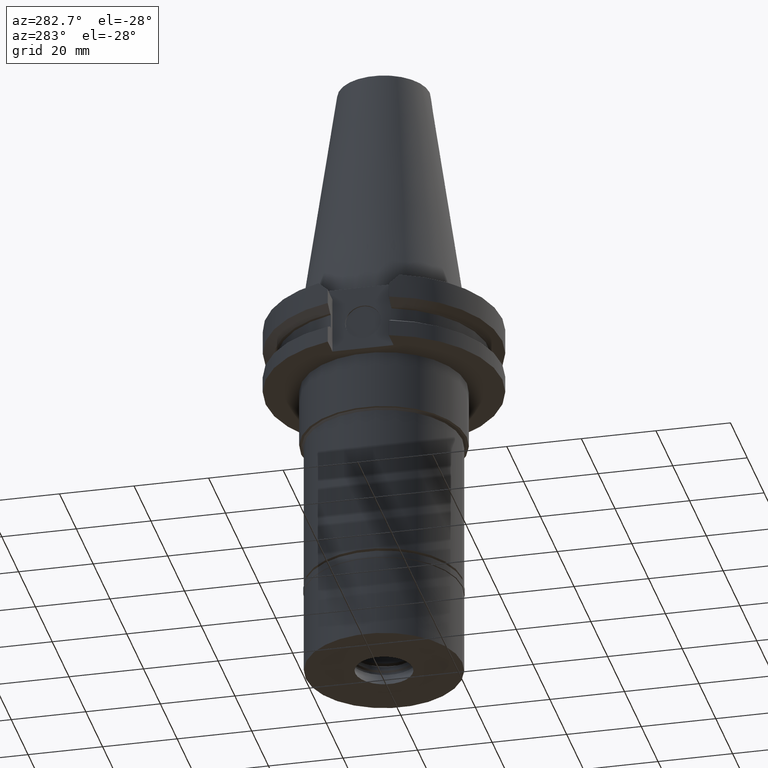
[diagram: clean part render]
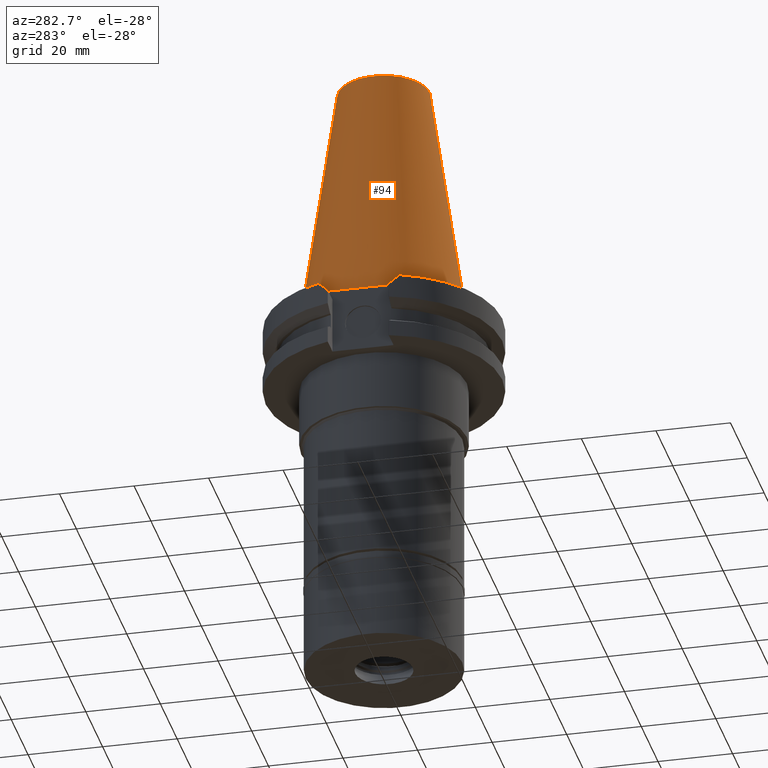
[diagram: same view with one face highlighted and labeled with its STEP entity id]
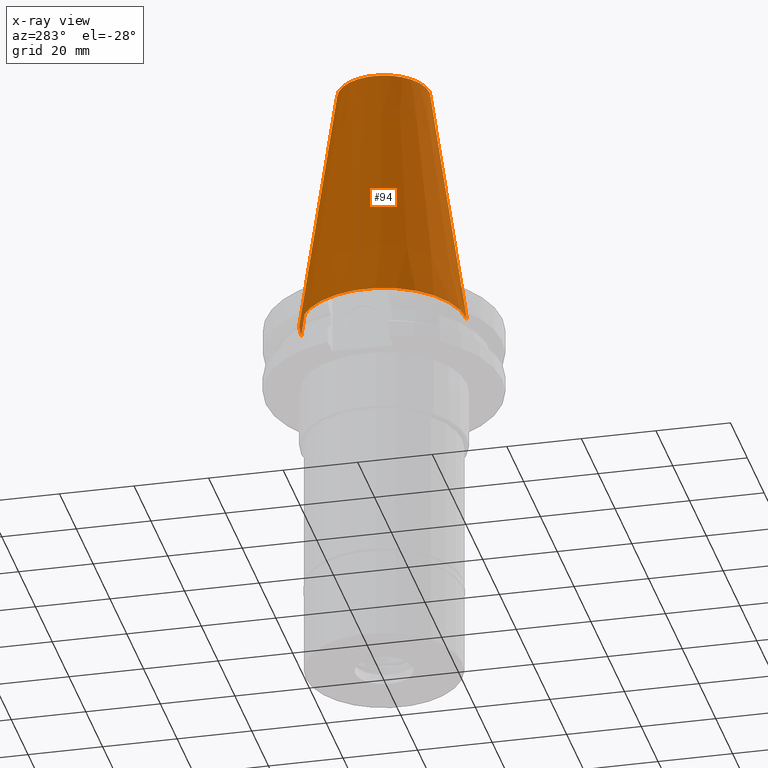
[diagram: x-ray of the same camera — body ghosted, the highlighted face saturated]
A machine part, auxiliary view. The second image highlights one B-rep face of the part: STEP entity #94.
The next image is the same camera in x-ray: the body ghosted, the highlighted face saturated — about 1% of this face is hidden behind the body in this view.
In plain terms, the highlighted conical surface has half-angle 8.297 deg.
Its self-contained STEP definition (entity closure, byte-faithful):
#94 = ADVANCED_FACE ( 'NONE', ( #613 ), #2600, .T. ) ;
#110 = ORIENTED_EDGE ( 'NONE', *, *, #686, .F. ) ;
#203 = CARTESIAN_POINT ( 'NONE',  ( 0.0000000000000000000, 22.22500000000000142, -2.131628207279999655E-13 ) ) ;
#258 = VECTOR ( 'NONE', #1866, 1000.000000000000114 ) ;
#357 = DIRECTION ( 'NONE',  ( 0.0000000000000000000, 0.0000000000000000000, -1.000000000000000000 ) ) ;
#390 = LINE ( 'NONE', #840, #258 ) ;
#486 = CARTESIAN_POINT ( 'NONE',  ( 0.0000000000000000000, 1.642557519355999895E-14, 68.25000000000000000 ) ) ;
#613 = FACE_OUTER_BOUND ( 'NONE', #3234, .T. ) ;
#686 = EDGE_CURVE ( 'NONE', #1570, #1252, #2320, .T. ) ;
#840 = CARTESIAN_POINT ( 'NONE',  ( 0.0000000000000000000, 12.27186888070000137, 68.25000000000000000 ) ) ;
#841 = VECTOR ( 'NONE', #2101, 1000.000000000000114 ) ;
#925 = VERTEX_POINT ( 'NONE', #1845 ) ;
#947 = DIRECTION ( 'NONE',  ( 0.0000000000000000000, 0.0000000000000000000, -1.000000000000000000 ) ) ;
#1089 = CIRCLE ( 'NONE', #2695, 12.27186888070000137 ) ;
#1098 = DIRECTION ( 'NONE',  ( 0.0000000000000000000, -1.000000000000000000, 0.0000000000000000000 ) ) ;
#1137 = AXIS2_PLACEMENT_3D ( 'NONE', #1370, #357, #1098 ) ;
#1251 = CARTESIAN_POINT ( 'NONE',  ( 0.0000000000000000000, 1.642557519355999895E-14, -3.126388037344000570E-13 ) ) ;
#1252 = VERTEX_POINT ( 'NONE', #2998 ) ;
#1272 = DIRECTION ( 'NONE',  ( 0.0000000000000000000, 0.0000000000000000000, -1.000000000000000000 ) ) ;
#1370 = CARTESIAN_POINT ( 'NONE',  ( 0.0000000000000000000, 1.642557519355999895E-14, 34.12500000000000000 ) ) ;
#1382 = ORIENTED_EDGE ( 'NONE', *, *, #3261, .T. ) ;
#1570 = VERTEX_POINT ( 'NONE', #2654 ) ;
#1827 = ORIENTED_EDGE ( 'NONE', *, *, #2935, .F. ) ;
#1845 = CARTESIAN_POINT ( 'NONE',  ( 0.0000000000000000000, 12.27186888070000137, 68.25000000000000000 ) ) ;
#1866 = DIRECTION ( 'NONE',  ( 0.0000000000000000000, 0.1443069799456937474, -0.9895329683941577192 ) ) ;
#1983 = ORIENTED_EDGE ( 'NONE', *, *, #3057, .T. ) ;
#2101 = DIRECTION ( 'NONE',  ( 0.0000000000000000000, -0.1443069799456937474, -0.9895329683941577192 ) ) ;
#2265 = AXIS2_PLACEMENT_3D ( 'NONE', #1251, #1272, #2280 ) ;
#2280 = DIRECTION ( 'NONE',  ( 0.0000000000000000000, -1.000000000000000000, 0.0000000000000000000 ) ) ;
#2320 = LINE ( 'NONE', #2884, #841 ) ;
#2426 = CIRCLE ( 'NONE', #2265, 22.22500000000000142 ) ;
#2515 = DIRECTION ( 'NONE',  ( 0.0000000000000000000, -1.000000000000000000, 0.0000000000000000000 ) ) ;
#2600 = CONICAL_SURFACE ( 'NONE', #1137, 17.24843444035000317, 0.1448125860318199565 ) ;
#2654 = CARTESIAN_POINT ( 'NONE',  ( 0.0000000000000000000, -12.27186888070000137, 68.25000000000000000 ) ) ;
#2695 = AXIS2_PLACEMENT_3D ( 'NONE', #486, #947, #2515 ) ;
#2884 = CARTESIAN_POINT ( 'NONE',  ( 0.0000000000000000000, -12.27186888070000137, 68.25000000000000000 ) ) ;
#2935 = EDGE_CURVE ( 'NONE', #1252, #3268, #2426, .T. ) ;
#2998 = CARTESIAN_POINT ( 'NONE',  ( 0.0000000000000000000, -22.22500000000000142, -2.131628207279999655E-13 ) ) ;
#3057 = EDGE_CURVE ( 'NONE', #925, #3268, #390, .T. ) ;
#3234 = EDGE_LOOP ( 'NONE', ( #1827, #110, #1382, #1983 ) ) ;
#3261 = EDGE_CURVE ( 'NONE', #1570, #925, #1089, .T. ) ;
#3268 = VERTEX_POINT ( 'NONE', #203 ) ;